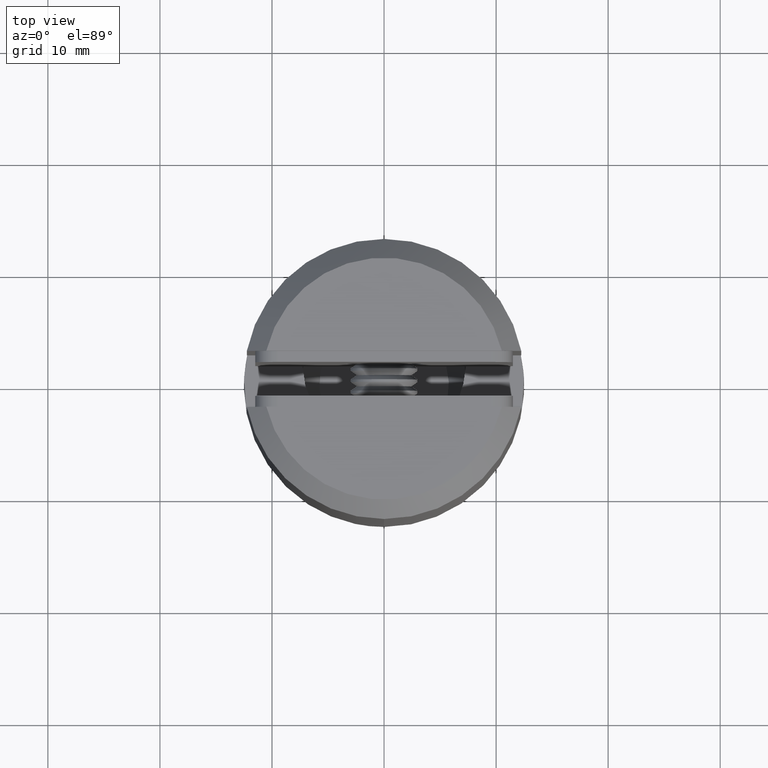
[diagram: clean part render]
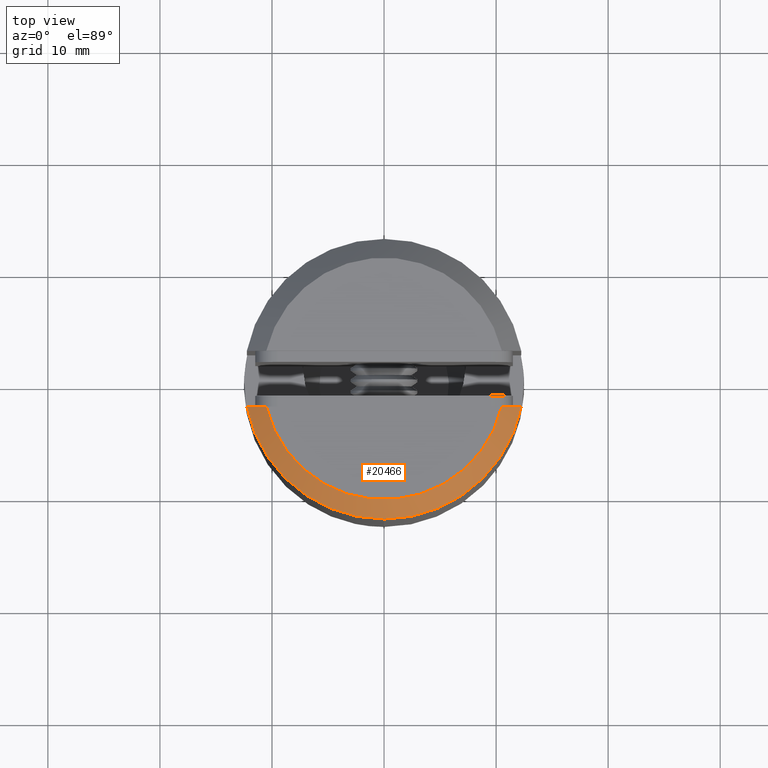
[diagram: same view with one face highlighted and labeled with its STEP entity id]
A machine part, top view. The second image highlights one B-rep face of the part: STEP entity #20466.
In plain terms, the highlighted conical surface has half-angle 45 deg.
Its self-contained STEP definition (entity closure, byte-faithful):
#311 = ORIENTED_EDGE ( 'NONE', *, *, #12925, .F. ) ;
#651 = CARTESIAN_POINT ( 'NONE',  ( 0.000000000000000000, -2.174490824415384115E-17, 39.59999999999999432 ) ) ;
#888 = CARTESIAN_POINT ( 'NONE',  ( -12.24744871391589207, -2.500000000000003997, 37.89999999999999858 ) ) ;
#955 = DIRECTION ( 'NONE',  ( -1.000000000000000000, 0.000000000000000000, 0.000000000000000000 ) ) ;
#1363 = B_SPLINE_CURVE_WITH_KNOTS ( 'NONE', 3,
 ( #12836, #6043, #2161, #16501 ),
 .UNSPECIFIED., .F., .F.,
 ( 4, 4 ),
 ( 0.000000000000000000, 0.002433172722957547499 ),
 .UNSPECIFIED. ) ;
#2161 = CARTESIAN_POINT ( 'NONE',  ( 11.66812187511647636, -2.500000000000003997, 38.46762205974326321 ) ) ;
#2259 = ORIENTED_EDGE ( 'NONE', *, *, #4196, .F. ) ;
#2757 = VERTEX_POINT ( 'NONE', #7673 ) ;
#3704 = CARTESIAN_POINT ( 'NONE',  ( 0.000000000000000000, -2.024221133297247584E-17, 37.89999999999999858 ) ) ;
#4196 = EDGE_CURVE ( 'NONE', #11412, #20267, #21488, .T. ) ;
#5672 = DIRECTION ( 'NONE',  ( 0.000000000000000000, 1.000000000000000000, 0.000000000000000000 ) ) ;
#5951 = CARTESIAN_POINT ( 'NONE',  ( -12.24744871391589207, -2.500000000000003997, 37.89999999999999858 ) ) ;
#6043 = CARTESIAN_POINT ( 'NONE',  ( 11.08800938267508585, -2.500000000000003997, 39.03444489547771212 ) ) ;
#6173 = CARTESIAN_POINT ( 'NONE',  ( -10.50666455160723167, -2.500000000000003997, 39.59999999999999432 ) ) ;
#6340 = AXIS2_PLACEMENT_3D ( 'NONE', #9313, #9546, #9922 ) ;
#7032 = CARTESIAN_POINT ( 'NONE',  ( -10.50666455160723167, -2.500000000000003997, 39.59999999999999432 ) ) ;
#7673 = CARTESIAN_POINT ( 'NONE',  ( 10.50666455160723878, -2.500000000000003997, 39.59999999999999432 ) ) ;
#8040 = DIRECTION ( 'NONE',  ( 0.000000000000000000, 0.000000000000000000, 1.000000000000000000 ) ) ;
#8056 = AXIS2_PLACEMENT_3D ( 'NONE', #651, #8040, #955 ) ;
#8426 = EDGE_LOOP ( 'NONE', ( #2259, #22624, #311, #18849 ) ) ;
#9206 = EDGE_CURVE ( 'NONE', #14265, #11412, #17350, .T. ) ;
#9313 = CARTESIAN_POINT ( 'NONE',  ( 0.000000000000000000, -2.174490824415384115E-17, 39.59999999999999432 ) ) ;
#9546 = DIRECTION ( 'NONE',  ( 0.000000000000000000, 8.839393595184493222E-19, -1.000000000000000000 ) ) ;
#9922 = DIRECTION ( 'NONE',  ( 0.000000000000000000, 1.000000000000000000, 0.000000000000000000 ) ) ;
#11412 = VERTEX_POINT ( 'NONE', #5951 ) ;
#12047 = CIRCLE ( 'NONE', #8056, 10.80000000000000604 ) ;
#12208 = EDGE_CURVE ( 'NONE', #20267, #2757, #12047, .T. ) ;
#12836 = CARTESIAN_POINT ( 'NONE',  ( 10.50666455160723878, -2.500000000000003997, 39.59999999999999432 ) ) ;
#12925 = EDGE_CURVE ( 'NONE', #2757, #14265, #1363, .T. ) ;
#12978 = FACE_OUTER_BOUND ( 'NONE', #8426, .T. ) ;
#13003 = DIRECTION ( 'NONE',  ( 0.000000000000000000, 8.839393595184493222E-19, -1.000000000000000000 ) ) ;
#13545 = AXIS2_PLACEMENT_3D ( 'NONE', #3704, #13003, #5672 ) ;
#13654 = CARTESIAN_POINT ( 'NONE',  ( -11.08800938267508762, -2.500000000000003997, 39.03444489547771212 ) ) ;
#14265 = VERTEX_POINT ( 'NONE', #19960 ) ;
#15218 = CONICAL_SURFACE ( 'NONE', #6340, 10.80000000000000604, 0.7853981633974467247 ) ;
#16501 = CARTESIAN_POINT ( 'NONE',  ( 12.24744871391589207, -2.500000000000003997, 37.89999999999999858 ) ) ;
#17350 = CIRCLE ( 'NONE', #13545, 12.50000000000000000 ) ;
#18849 = ORIENTED_EDGE ( 'NONE', *, *, #12208, .F. ) ;
#19960 = CARTESIAN_POINT ( 'NONE',  ( 12.24744871391589207, -2.500000000000003997, 37.89999999999999858 ) ) ;
#20267 = VERTEX_POINT ( 'NONE', #7032 ) ;
#20466 = ADVANCED_FACE ( 'NONE', ( #12978 ), #15218, .T. ) ;
#21488 = B_SPLINE_CURVE_WITH_KNOTS ( 'NONE', 3,
 ( #888, #22522, #13654, #6173 ),
 .UNSPECIFIED., .F., .F.,
 ( 4, 4 ),
 ( 1.734723475976807094E-18, 0.002433172722957552270 ),
 .UNSPECIFIED. ) ;
#22522 = CARTESIAN_POINT ( 'NONE',  ( -11.66812187511647636, -2.500000000000003109, 38.46762205974326321 ) ) ;
#22624 = ORIENTED_EDGE ( 'NONE', *, *, #9206, .F. ) ;